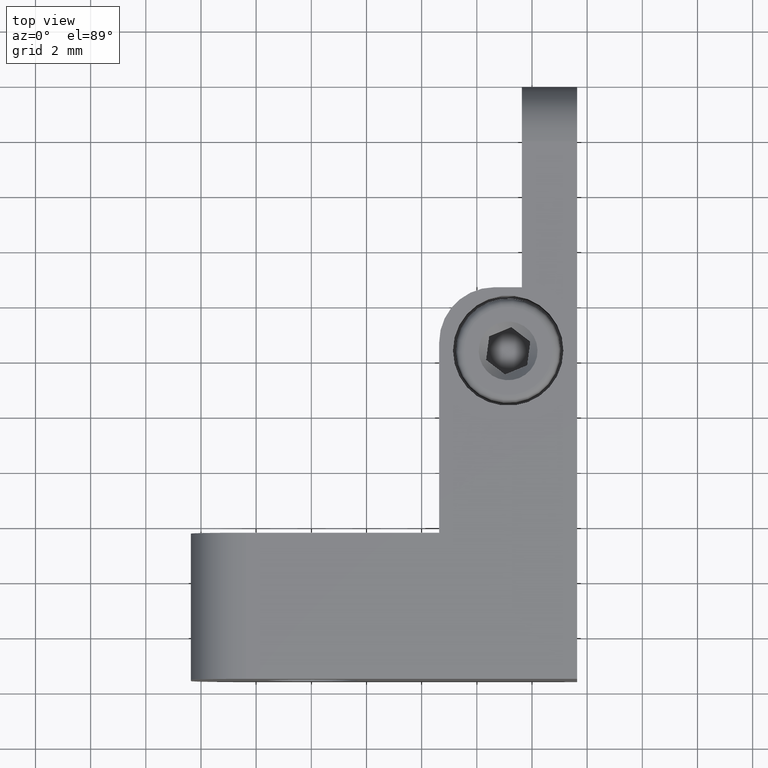
[diagram: clean part render]
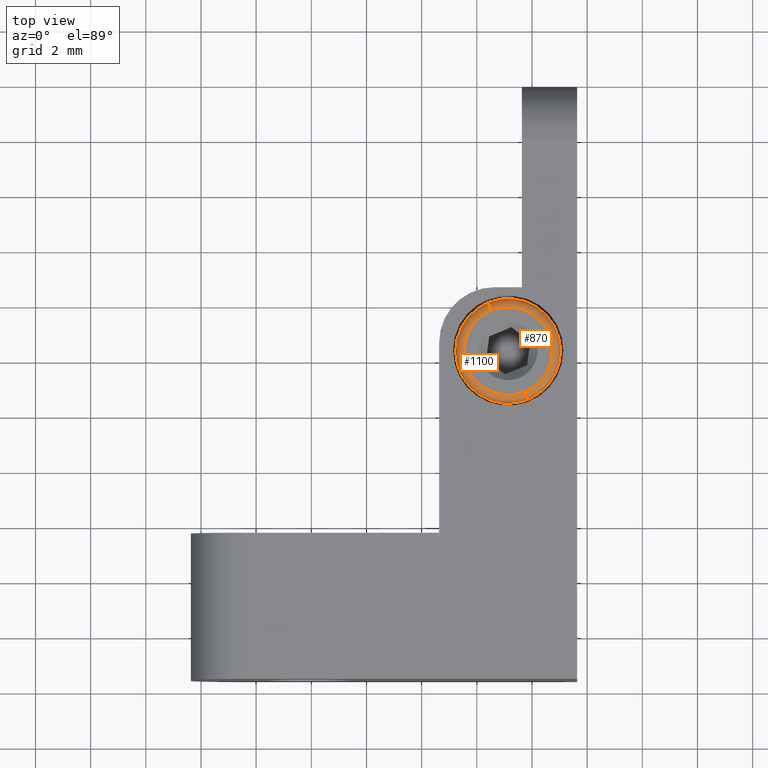
[diagram: same view with one multi-face feature highlighted, each face labeled with its STEP entity id]
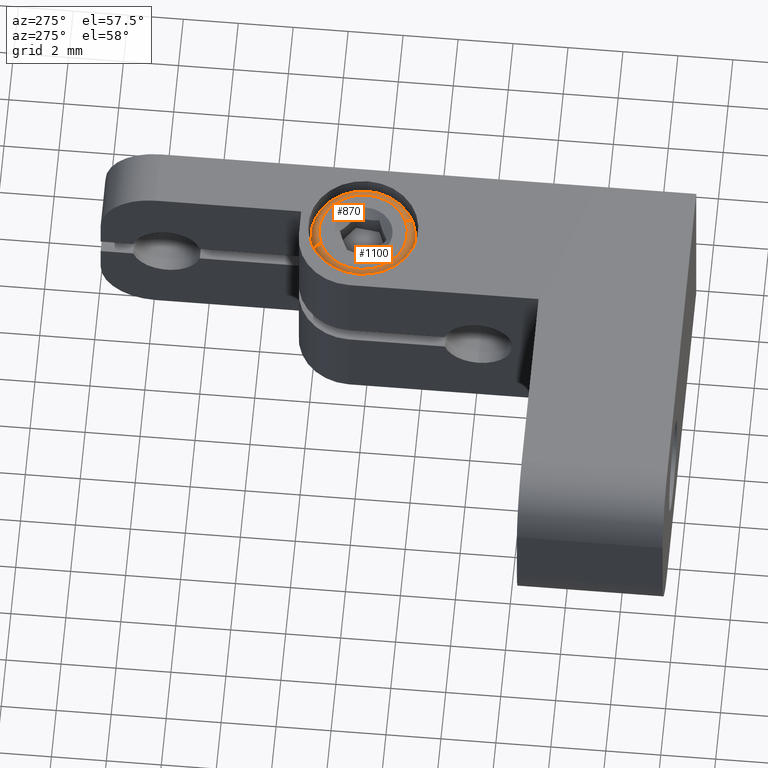
[diagram: same view with one multi-face feature highlighted, each face labeled with its STEP entity id]
A machine part, top view. The highlighted faces form ONE feature: a constant-radius fillet chain: 2 tangent blend faces with common blend radius 0.3 mm. The faces share edges in the B-rep.
A second angle (auxiliary view) of the same feature is appended — it is thin or edge-on in the first view.
Their STEP definitions:
[1] entity #1100 (Torus):
#25 = ORIENTED_EDGE ( 'NONE', *, *, #665, .T. ) ;
#71 = CARTESIAN_POINT ( 'NONE',  ( -1.054711873393889420E-16, 1.700000000000000178, -1.899999999999999689 ) ) ;
#101 = CARTESIAN_POINT ( 'NONE',  ( 8.881784197001251584E-17, 1.700000000000000178, 1.600000000000013634 ) ) ;
#109 = CARTESIAN_POINT ( 'NONE',  ( 0.000000000000000000, 1.700000000000000178, 0.000000000000000000 ) ) ;
#188 = ORIENTED_EDGE ( 'NONE', *, *, #1561, .F. ) ;
#216 = AXIS2_PLACEMENT_3D ( 'NONE', #791, #1765, #1973 ) ;
#270 = TOROIDAL_SURFACE ( 'NONE', #1222, 1.599999999999999867, 0.2999999999999999889 ) ;
#272 = FACE_OUTER_BOUND ( 'NONE', #1230, .T. ) ;
#273 = DIRECTION ( 'NONE',  ( -1.000000000000000000, 0.000000000000000000, 5.551115123125734631E-17 ) ) ;
#307 = DIRECTION ( 'NONE',  ( 1.000000000000000000, -0.000000000000000000, 6.695352868347797441E-17 ) ) ;
#554 = AXIS2_PLACEMENT_3D ( 'NONE', #1479, #1499, #1303 ) ;
#620 = CARTESIAN_POINT ( 'NONE',  ( 1.071256458935656835E-16, 1.700000000000000178, -1.600000000000013634 ) ) ;
#665 = EDGE_CURVE ( 'NONE', #938, #1626, #1323, .T. ) ;
#782 = VERTEX_POINT ( 'NONE', #71 ) ;
#791 = CARTESIAN_POINT ( 'NONE',  ( 0.000000000000000000, 1.700000000000000178, 0.000000000000000000 ) ) ;
#882 = EDGE_CURVE ( 'NONE', #948, #1626, #1716, .T. ) ;
#913 = CIRCLE ( 'NONE', #1435, 0.2999999999999999334 ) ;
#938 = VERTEX_POINT ( 'NONE', #1288 ) ;
#948 = VERTEX_POINT ( 'NONE', #2029 ) ;
#949 = ORIENTED_EDGE ( 'NONE', *, *, #882, .F. ) ;
#977 = DIRECTION ( 'NONE',  ( 6.695352868347794976E-17, 0.000000000000000000, -1.000000000000000000 ) ) ;
#1100 = ADVANCED_FACE ( 'NONE', ( #272 ), #270, .T. ) ;
#1222 = AXIS2_PLACEMENT_3D ( 'NONE', #109, #1265, #1274 ) ;
#1230 = EDGE_LOOP ( 'NONE', ( #2049, #188, #25, #949 ) ) ;
#1265 = DIRECTION ( 'NONE',  ( 0.000000000000000000, 1.000000000000000000, 0.000000000000000000 ) ) ;
#1274 = DIRECTION ( 'NONE',  ( 5.551115123125734631E-17, 0.000000000000000000, 1.000000000000000000 ) ) ;
#1275 = EDGE_CURVE ( 'NONE', #782, #948, #913, .T. ) ;
#1288 = CARTESIAN_POINT ( 'NONE',  ( 3.381540791773859922E-16, 1.700000000000000178, 1.899999999999999689 ) ) ;
#1303 = DIRECTION ( 'NONE',  ( 5.551115123125735247E-17, 0.000000000000000000, 1.000000000000000000 ) ) ;
#1323 = CIRCLE ( 'NONE', #2105, 0.2999999999999999334 ) ;
#1435 = AXIS2_PLACEMENT_3D ( 'NONE', #620, #307, #977 ) ;
#1479 = CARTESIAN_POINT ( 'NONE',  ( 0.000000000000000000, 1.999999999999998224, 0.000000000000000000 ) ) ;
#1499 = DIRECTION ( 'NONE',  ( 0.000000000000000000, 1.000000000000000000, 0.000000000000000000 ) ) ;
#1561 = EDGE_CURVE ( 'NONE', #938, #782, #1685, .T. ) ;
#1626 = VERTEX_POINT ( 'NONE', #1778 ) ;
#1685 = CIRCLE ( 'NONE', #216, 1.900000000000016342 ) ;
#1716 = CIRCLE ( 'NONE', #554, 1.600000000000013634 ) ;
#1765 = DIRECTION ( 'NONE',  ( -0.000000000000000000, -1.000000000000000000, -0.000000000000000000 ) ) ;
#1778 = CARTESIAN_POINT ( 'NONE',  ( 8.881784197001251584E-17, 1.999999999999998224, 1.600000000000013634 ) ) ;
#1783 = DIRECTION ( 'NONE',  ( 5.551115123125734631E-17, 0.000000000000000000, 1.000000000000000000 ) ) ;
#1973 = DIRECTION ( 'NONE',  ( 5.551115123125734015E-17, 0.000000000000000000, 1.000000000000000000 ) ) ;
#2029 = CARTESIAN_POINT ( 'NONE',  ( 1.171686751960863474E-16, 1.999999999999998224, -1.599999999999999867 ) ) ;
#2049 = ORIENTED_EDGE ( 'NONE', *, *, #1275, .F. ) ;
#2105 = AXIS2_PLACEMENT_3D ( 'NONE', #101, #273, #1783 ) ;
[2] entity #870 (Torus):
#71 = CARTESIAN_POINT ( 'NONE',  ( -1.054711873393889420E-16, 1.700000000000000178, -1.899999999999999689 ) ) ;
#101 = CARTESIAN_POINT ( 'NONE',  ( 8.881784197001251584E-17, 1.700000000000000178, 1.600000000000013634 ) ) ;
#123 = ORIENTED_EDGE ( 'NONE', *, *, #1535, .F. ) ;
#155 = ORIENTED_EDGE ( 'NONE', *, *, #665, .F. ) ;
#170 = EDGE_CURVE ( 'NONE', #782, #938, #471, .T. ) ;
#209 = CARTESIAN_POINT ( 'NONE',  ( 0.000000000000000000, 1.999999999999998224, 0.000000000000000000 ) ) ;
#273 = DIRECTION ( 'NONE',  ( -1.000000000000000000, 0.000000000000000000, 5.551115123125734631E-17 ) ) ;
#279 = AXIS2_PLACEMENT_3D ( 'NONE', #209, #1914, #403 ) ;
#307 = DIRECTION ( 'NONE',  ( 1.000000000000000000, -0.000000000000000000, 6.695352868347797441E-17 ) ) ;
#316 = CARTESIAN_POINT ( 'NONE',  ( 0.000000000000000000, 1.700000000000000178, 0.000000000000000000 ) ) ;
#403 = DIRECTION ( 'NONE',  ( 5.551115123125735247E-17, 0.000000000000000000, 1.000000000000000000 ) ) ;
#471 = CIRCLE ( 'NONE', #1312, 1.900000000000016342 ) ;
#556 = DIRECTION ( 'NONE',  ( -0.000000000000000000, -1.000000000000000000, -0.000000000000000000 ) ) ;
#567 = DIRECTION ( 'NONE',  ( 5.551115123125734015E-17, 0.000000000000000000, 1.000000000000000000 ) ) ;
#620 = CARTESIAN_POINT ( 'NONE',  ( 1.071256458935656835E-16, 1.700000000000000178, -1.600000000000013634 ) ) ;
#665 = EDGE_CURVE ( 'NONE', #938, #1626, #1323, .T. ) ;
#668 = FACE_OUTER_BOUND ( 'NONE', #1992, .T. ) ;
#736 = CIRCLE ( 'NONE', #279, 1.600000000000013634 ) ;
#782 = VERTEX_POINT ( 'NONE', #71 ) ;
#870 = ADVANCED_FACE ( 'NONE', ( #668 ), #1928, .T. ) ;
#913 = CIRCLE ( 'NONE', #1435, 0.2999999999999999334 ) ;
#938 = VERTEX_POINT ( 'NONE', #1288 ) ;
#948 = VERTEX_POINT ( 'NONE', #2029 ) ;
#971 = AXIS2_PLACEMENT_3D ( 'NONE', #316, #999, #1166 ) ;
#972 = ORIENTED_EDGE ( 'NONE', *, *, #170, .F. ) ;
#977 = DIRECTION ( 'NONE',  ( 6.695352868347794976E-17, 0.000000000000000000, -1.000000000000000000 ) ) ;
#999 = DIRECTION ( 'NONE',  ( 0.000000000000000000, 1.000000000000000000, 0.000000000000000000 ) ) ;
#1166 = DIRECTION ( 'NONE',  ( 5.551115123125734631E-17, 0.000000000000000000, 1.000000000000000000 ) ) ;
#1275 = EDGE_CURVE ( 'NONE', #782, #948, #913, .T. ) ;
#1288 = CARTESIAN_POINT ( 'NONE',  ( 3.381540791773859922E-16, 1.700000000000000178, 1.899999999999999689 ) ) ;
#1312 = AXIS2_PLACEMENT_3D ( 'NONE', #2069, #556, #567 ) ;
#1323 = CIRCLE ( 'NONE', #2105, 0.2999999999999999334 ) ;
#1435 = AXIS2_PLACEMENT_3D ( 'NONE', #620, #307, #977 ) ;
#1535 = EDGE_CURVE ( 'NONE', #1626, #948, #736, .T. ) ;
#1626 = VERTEX_POINT ( 'NONE', #1778 ) ;
#1644 = ORIENTED_EDGE ( 'NONE', *, *, #1275, .T. ) ;
#1778 = CARTESIAN_POINT ( 'NONE',  ( 8.881784197001251584E-17, 1.999999999999998224, 1.600000000000013634 ) ) ;
#1783 = DIRECTION ( 'NONE',  ( 5.551115123125734631E-17, 0.000000000000000000, 1.000000000000000000 ) ) ;
#1914 = DIRECTION ( 'NONE',  ( 0.000000000000000000, 1.000000000000000000, 0.000000000000000000 ) ) ;
#1928 = TOROIDAL_SURFACE ( 'NONE', #971, 1.599999999999999867, 0.2999999999999999889 ) ;
#1992 = EDGE_LOOP ( 'NONE', ( #972, #1644, #123, #155 ) ) ;
#2029 = CARTESIAN_POINT ( 'NONE',  ( 1.171686751960863474E-16, 1.999999999999998224, -1.599999999999999867 ) ) ;
#2069 = CARTESIAN_POINT ( 'NONE',  ( 0.000000000000000000, 1.700000000000000178, 0.000000000000000000 ) ) ;
#2105 = AXIS2_PLACEMENT_3D ( 'NONE', #101, #273, #1783 ) ;